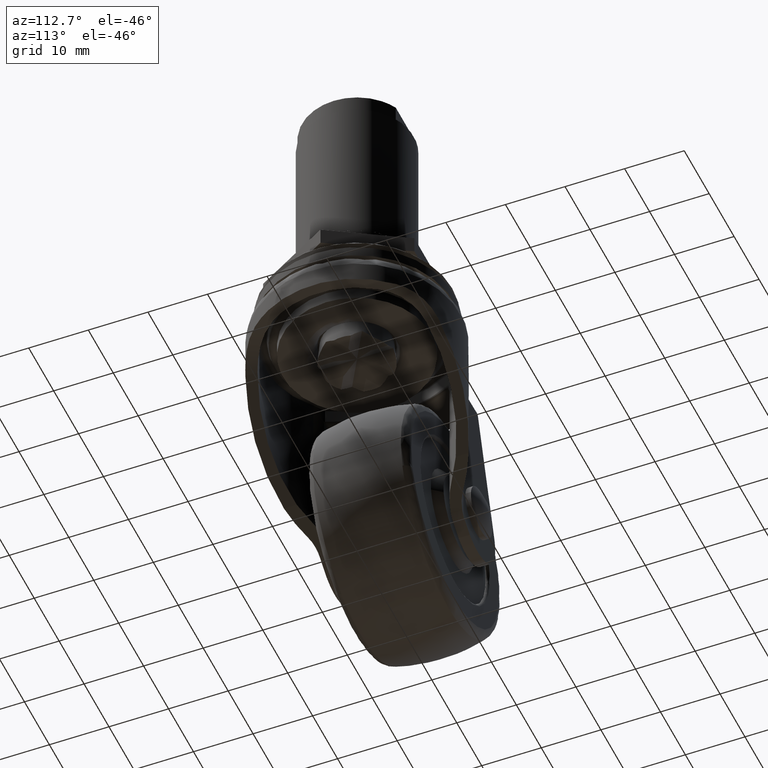
[diagram: clean part render]
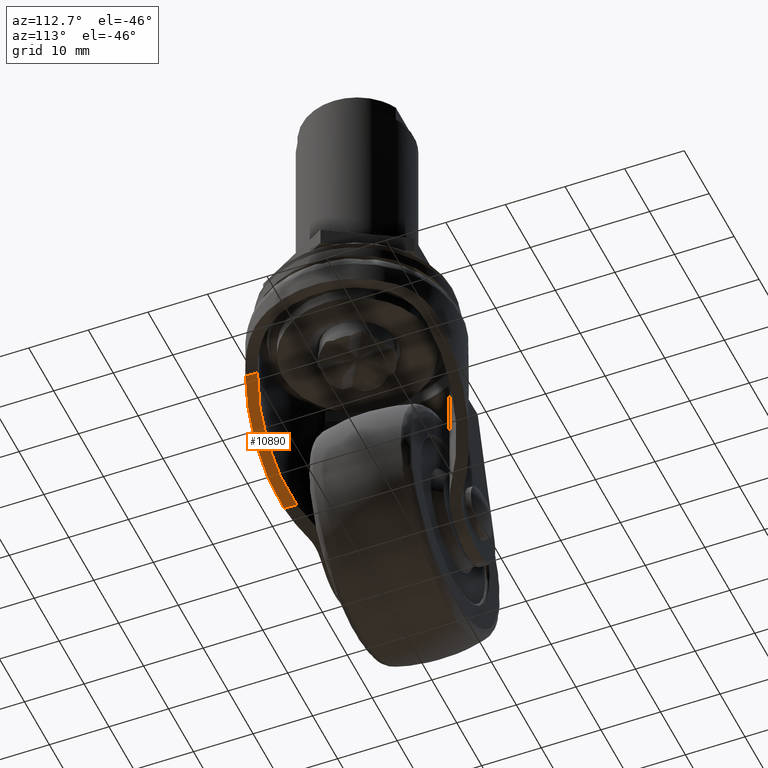
[diagram: same view with one face highlighted and labeled with its STEP entity id]
A machine part, auxiliary view. The second image highlights one B-rep face of the part: STEP entity #10890.
In plain terms, the highlighted face is a freeform B-spline surface patch.
Its self-contained STEP definition (entity closure, byte-faithful):
#10269=CARTESIAN_POINT('',(6.087201972660830,-14.156767715267300,-18.038480959911400));
#10270=VERTEX_POINT('',#10269);
#10299=CARTESIAN_POINT('',(-7.697175877460260,-13.349965674541780,-34.593574192256312));
#10300=VERTEX_POINT('',#10299);
#10301=CARTESIAN_POINT('',(-7.697175877460317,-13.349965674541750,-34.593574192256270));
#10302=CARTESIAN_POINT('',(-1.007142257829996,-17.207231427263217,-26.558816910880040));
#10303=CARTESIAN_POINT('',(6.087201972660790,-14.156767715267300,-18.038480959911379));
#10311=(BOUNDED_CURVE()B_SPLINE_CURVE(2,(#10301,#10302,#10303),.UNSPECIFIED.,.F.,.U.)CURVE()GEOMETRIC_REPRESENTATION_ITEM()QUASI_UNIFORM_CURVE()RATIONAL_B_SPLINE_CURVE((1.0,0.894023657795623,1.0))REPRESENTATION_ITEM(''));
#10312=EDGE_CURVE('',#10300,#10270,#10311,.T.);
#10611=CARTESIAN_POINT('',(-7.697175877460260,-15.493336745563751,-34.593574192256312));
#10612=VERTEX_POINT('',#10611);
#10626=CARTESIAN_POINT('',(6.087201972660830,-16.193701619581251,-18.038480959911400));
#10627=VERTEX_POINT('',#10626);
#10628=CARTESIAN_POINT('',(-7.697175877460260,-15.493336745563751,-34.593574192256312));
#10629=CARTESIAN_POINT('',(-0.957322016743397,-18.841733634257142,-26.498982600981218));
#10630=CARTESIAN_POINT('',(6.087201972660830,-16.193701619581251,-18.038480959911400));
#10638=(BOUNDED_CURVE()B_SPLINE_CURVE(2,(#10628,#10629,#10630),.UNSPECIFIED.,.F.,.U.)CURVE()GEOMETRIC_REPRESENTATION_ITEM()QUASI_UNIFORM_CURVE()RATIONAL_B_SPLINE_CURVE((1.0,0.916991683792285,1.0))REPRESENTATION_ITEM(''));
#10639=EDGE_CURVE('',#10612,#10627,#10638,.T.);
#10871=CARTESIAN_POINT('',(-8.385705783152760,-17.497033050260679,-35.420501377939701));
#10872=CARTESIAN_POINT('',(6.775732001595298,-17.497033050260679,-17.211553626213970));
#10873=CARTESIAN_POINT('',(-8.385705783152760,-13.152674853486010,-35.420501377939701));
#10874=CARTESIAN_POINT('',(6.775732001595298,-13.152674853486010,-17.211553626213970));
#10875=B_SPLINE_SURFACE_WITH_KNOTS('',1,1,((#10871,#10873),(#10872,#10874)),.UNSPECIFIED.,.F.,.F.,.U.,(2,2),(2,2),(0.0,23.694619092229850),(0.0,4.344358196774671),.UNSPECIFIED.);
#10876=ORIENTED_EDGE('',*,*,#10312,.T.);
#10877=CARTESIAN_POINT('',(6.087201972660830,-14.156767715267300,-18.038480959911400));
#10878=CARTESIAN_POINT('',(6.087201972660830,-16.193701619581251,-18.038480959911400));
#10879=QUASI_UNIFORM_CURVE('',1,(#10877,#10878),.UNSPECIFIED.,.F.,.U.);
#10880=EDGE_CURVE('',#10270,#10627,#10879,.T.);
#10881=ORIENTED_EDGE('',*,*,#10880,.T.);
#10882=ORIENTED_EDGE('',*,*,#10639,.F.);
#10883=CARTESIAN_POINT('',(-7.697175877460260,-13.349965674541780,-34.593574192256312));
#10884=CARTESIAN_POINT('',(-7.697175877460260,-15.493336745563751,-34.593574192256312));
#10885=QUASI_UNIFORM_CURVE('',1,(#10883,#10884),.UNSPECIFIED.,.F.,.U.);
#10886=EDGE_CURVE('',#10300,#10612,#10885,.T.);
#10887=ORIENTED_EDGE('',*,*,#10886,.F.);
#10888=EDGE_LOOP('',(#10876,#10881,#10882,#10887));
#10889=FACE_OUTER_BOUND('',#10888,.T.);
#10890=ADVANCED_FACE('',(#10889),#10875,.F.);